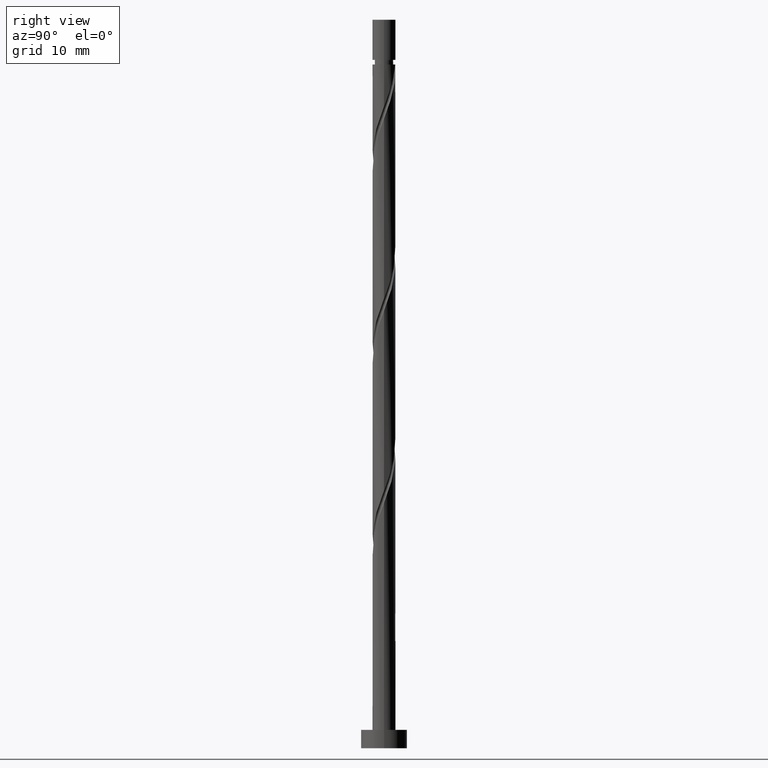
[diagram: clean part render]
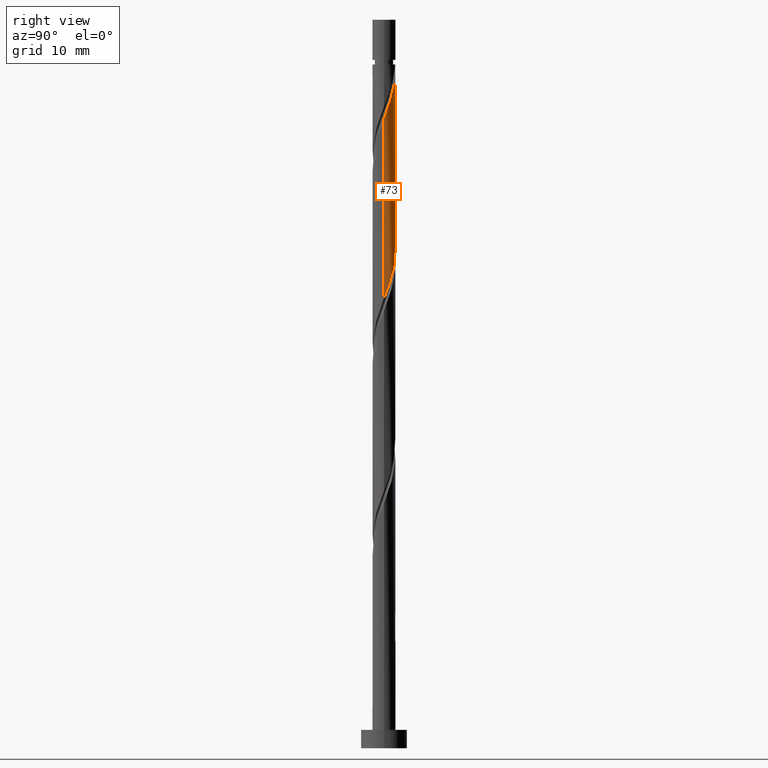
[diagram: same view with one face highlighted and labeled with its STEP entity id]
A machine part, right view. The second image highlights one B-rep face of the part: STEP entity #73.
In plain terms, the highlighted cylindrical surface (edge-blend (fillet) strip) has radius 1.25 mm, axis along (-0, -0, -1).
Its self-contained STEP definition (entity closure, byte-faithful):
#32 = EDGE_CURVE ( 'NONE', #1266, #702, #162, .T. ) ;
#66 = CARTESIAN_POINT ( 'NONE',  ( 0.6989200819604595161, 1.055086260630532902, 71.54417391089489797 ) ) ;
#73 = ADVANCED_FACE ( 'NONE', ( #1175 ), #334, .T. ) ;
#74 = CARTESIAN_POINT ( 'NONE',  ( 1.088177225647685376, 0.6151181395323269685, 69.98167391089491218 ) ) ;
#99 = VERTEX_POINT ( 'NONE', #940 ) ;
#111 = CARTESIAN_POINT ( 'NONE',  ( -0.6989200819604576287, 1.055086260630531791, 55.91917391089489797 ) ) ;
#162 = CIRCLE ( 'NONE', #296, 1.250000000000002887 ) ;
#178 = DIRECTION ( 'NONE',  ( -0.000000000000000000, -0.000000000000000000, -1.000000000000000000 ) ) ;
#180 = CARTESIAN_POINT ( 'NONE',  ( 0.9907520833843873609, 0.7874684803904423713, 70.50250724422824078 ) ) ;
#211 = CARTESIAN_POINT ( 'NONE',  ( -0.2487468592766546027, 1.225000000000002309, 74.14834057756158359 ) ) ;
#222 = EDGE_LOOP ( 'NONE', ( #720, #1242, #1069, #674, #621 ) ) ;
#235 = CARTESIAN_POINT ( 'NONE',  ( -0.5187964976060722710, 1.137255553546199227, 55.39834057756157648 ) ) ;
#240 = VECTOR ( 'NONE', #178, 1000.000000000000000 ) ;
#242 = LINE ( 'NONE', #1088, #1383 ) ;
#243 = CARTESIAN_POINT ( 'NONE',  ( -1.185602367910980393, 0.4427677986742115657, 58.00250724422821236 ) ) ;
#286 =( BOUNDED_CURVE ( )  B_SPLINE_CURVE ( 2, ( #1409, #689, #1174, #1288, #74, #180, #1393, #66, #932, #1157, #562, #553, #1041 ),
 .UNSPECIFIED., .F., .T. ) 
 B_SPLINE_CURVE_WITH_KNOTS ( ( 3, 2, 2, 2, 2, 2, 3 ),
 ( 0.6795322023138555823, 0.6875000000000000000, 0.6999999999999999556, 0.7125000000000000222, 0.7249999999999999778, 0.7375000000000000444, 0.7500000000000000000 ),
 .UNSPECIFIED. ) 
 CURVE ( )  GEOMETRIC_REPRESENTATION_ITEM ( )  RATIONAL_B_SPLINE_CURVE ( ( 0.9039174447099282972, 0.9019565955404582613, 0.9090909090909061741, 0.8978984914501224601, 0.9090909090909061741, 0.8978984914501224601, 0.9090909090909061741, 0.8978984914501224601, 0.9090909090909061741, 0.8978984914501224601, 0.9090909090909061741, 0.8978984914501224601, 0.9090909090909061741 ) ) 
 REPRESENTATION_ITEM ( '' )  );
#296 = AXIS2_PLACEMENT_3D ( 'NONE', #1534, #459, #332 ) ;
#305 = EDGE_CURVE ( 'NONE', #651, #702, #286, .T. ) ;
#332 = DIRECTION ( 'NONE',  ( -1.000000000000000000, 0.000000000000000000, 0.000000000000000000 ) ) ;
#334 = CYLINDRICAL_SURFACE ( 'NONE', #1188, 1.250000000000000000 ) ;
#366 = CARTESIAN_POINT ( 'NONE',  ( -1.224999999999999867, 0.2487468592766547693, 58.52334057756158359 ) ) ;
#385 = EDGE_CURVE ( 'NONE', #1266, #99, #242, .T. ) ;
#446 = DIRECTION ( 'NONE',  ( -0.000000000000000000, -0.000000000000000000, -1.000000000000000000 ) ) ;
#459 = DIRECTION ( 'NONE',  ( -0.000000000000000000, -0.000000000000000000, -1.000000000000000000 ) ) ;
#494 = CARTESIAN_POINT ( 'NONE',  ( 0.9212773705104870814, 0.8448360826724214956, 51.23167391089490508 ) ) ;
#553 = CARTESIAN_POINT ( 'NONE',  ( -0.05472591987909729977, 1.264397632089020895, 73.62750724422825499 ) ) ;
#562 = CARTESIAN_POINT ( 'NONE',  ( 0.1419734966862952752, 1.241911239275444778, 73.10667391089489797 ) ) ;
#583 = CARTESIAN_POINT ( 'NONE',  ( 1.241911239275442780, 0.1419734966862943037, 49.14834057756157648 ) ) ;
#614 = CARTESIAN_POINT ( 'NONE',  ( 0.4427677986742117877, 1.185602367910980393, 52.79417391089488376 ) ) ;
#621 = ORIENTED_EDGE ( 'NONE', *, *, #32, .T. ) ;
#651 = VERTEX_POINT ( 'NONE', #1545 ) ;
#674 = ORIENTED_EDGE ( 'NONE', *, *, #385, .F. ) ;
#689 = CARTESIAN_POINT ( 'NONE',  ( 1.250000000000000444, 0.1256297269074068135, 68.60950937816583917 ) ) ;
#702 = VERTEX_POINT ( 'NONE', #211 ) ;
#703 = CARTESIAN_POINT ( 'NONE',  ( -0.1419734966862945535, 1.241911239275442558, 54.35667391089491929 ) ) ;
#713 = CARTESIAN_POINT ( 'NONE',  ( 1.137255553546199449, 0.5187964976060720490, 50.19000724422824788 ) ) ;
#720 = ORIENTED_EDGE ( 'NONE', *, *, #305, .F. ) ;
#729 = CARTESIAN_POINT ( 'NONE',  ( -0.3386729132516866914, 1.219424846461866219, 54.87750724422821946 ) ) ;
#740 = CARTESIAN_POINT ( 'NONE',  ( 0.05472591987909775774, 1.264397632089018675, 53.83584057756156227 ) ) ;
#834 = VERTEX_POINT ( 'NONE', #1575 ) ;
#850 = CARTESIAN_POINT ( 'NONE',  ( -1.249999999999999112, 0.1256297269074042322, 58.85383844362399230 ) ) ;
#856 = CARTESIAN_POINT ( 'NONE',  ( 0.6151181395323268575, 1.088177225647682933, 52.27334057756156938 ) ) ;
#864 = CARTESIAN_POINT ( 'NONE',  ( -1.250000000000000222, 5.547448029786229546E-16, 59.18814301903181985 ) ) ;
#891 =( BOUNDED_CURVE ( )  B_SPLINE_CURVE ( 2, ( #864, #850, #366, #243, #1079, #1098, #1325, #111, #235, #729, #703, #740, #955, #614, #856, #1570, #494, #975, #713, #1452, #583, #1064, #1541 ),
 .UNSPECIFIED., .F., .T. ) 
 B_SPLINE_CURVE_WITH_KNOTS ( ( 3, 2, 2, 2, 2, 2, 2, 2, 2, 2, 2, 3 ),
 ( 0.4295322023138553602, 0.4375000000000000000, 0.4500000000000000111, 0.4625000000000000222, 0.4749999999999999778, 0.4874999999999999889, 0.5000000000000000000, 0.5124999999999999556, 0.5250000000000000222, 0.5374999999999999778, 0.5500000000000000444, 0.5545322023138552492 ),
 .UNSPECIFIED. ) 
 CURVE ( )  GEOMETRIC_REPRESENTATION_ITEM ( )  RATIONAL_B_SPLINE_CURVE ( ( 0.9039174447099216358, 0.9019565955404511559, 0.9090909090908991796, 0.8978984914501155767, 0.9090909090908991796, 0.8978984914501155767, 0.9090909090908991796, 0.8978984914501155767, 0.9090909090908991796, 0.8978984914501155767, 0.9090909090908991796, 0.8978984914501155767, 0.9090909090908991796, 0.8978984914501155767, 0.9090909090908991796, 0.8978984914501155767, 0.9090909090908991796, 0.8978984914501155767, 0.9090909090908991796, 0.8978984914501155767, 0.9090909090908991796, 0.9050328050005637115, 0.9039174447099216358 ) ) 
 REPRESENTATION_ITEM ( '' )  );
#932 = CARTESIAN_POINT ( 'NONE',  ( 0.5187964976060736033, 1.137255553546200559, 72.06500724422822657 ) ) ;
#940 = CARTESIAN_POINT ( 'NONE',  ( -1.250000000000000000, 5.547448029786229546E-16, 59.18814301903181985 ) ) ;
#945 = EDGE_CURVE ( 'NONE', #651, #834, #1510, .T. ) ;
#955 = CARTESIAN_POINT ( 'NONE',  ( 0.2487468592766550191, 1.224999999999999867, 53.31500724422824788 ) ) ;
#975 = CARTESIAN_POINT ( 'NONE',  ( 1.055086260630531791, 0.6989200819604574066, 50.71084057756156938 ) ) ;
#1041 = CARTESIAN_POINT ( 'NONE',  ( -0.2487468592766546027, 1.225000000000002309, 74.14834057756161201 ) ) ;
#1042 = DIRECTION ( 'NONE',  ( -1.000000000000000000, 0.000000000000000000, 0.000000000000000000 ) ) ;
#1064 = CARTESIAN_POINT ( 'NONE',  ( 1.249999999999999556, 0.07121717180804042202, 48.96098744157244909 ) ) ;
#1069 = ORIENTED_EDGE ( 'NONE', *, *, #1256, .F. ) ;
#1079 = CARTESIAN_POINT ( 'NONE',  ( -1.088177225647682933, 0.6151181395323265244, 57.48167391089491929 ) ) ;
#1088 = CARTESIAN_POINT ( 'NONE',  ( -1.250000000000000000, 0.000000000000000000, 79.00000000000000000 ) ) ;
#1098 = CARTESIAN_POINT ( 'NONE',  ( -0.9907520833843852515, 0.7874684803904412611, 56.96084057756155516 ) ) ;
#1157 = CARTESIAN_POINT ( 'NONE',  ( 0.3386729132516877461, 1.219424846461868217, 72.58584057756156938 ) ) ;
#1174 = CARTESIAN_POINT ( 'NONE',  ( 1.225000000000001421, 0.2487468592766546582, 68.94000724422822657 ) ) ;
#1175 = FACE_OUTER_BOUND ( 'NONE', #222, .T. ) ;
#1188 = AXIS2_PLACEMENT_3D ( 'NONE', #1289, #446, #1042 ) ;
#1195 = CARTESIAN_POINT ( 'NONE',  ( -1.250000000000002887, 0.000000000000000000, 74.14834057756156938 ) ) ;
#1242 = ORIENTED_EDGE ( 'NONE', *, *, #945, .T. ) ;
#1256 = EDGE_CURVE ( 'NONE', #99, #834, #891, .T. ) ;
#1266 = VERTEX_POINT ( 'NONE', #1195 ) ;
#1273 = CARTESIAN_POINT ( 'NONE',  ( 1.250000000000000000, 1.530808498934191571E-16, 79.00000000000000000 ) ) ;
#1288 = CARTESIAN_POINT ( 'NONE',  ( 1.185602367910982613, 0.4427677986742118987, 69.46084057756158359 ) ) ;
#1289 = CARTESIAN_POINT ( 'NONE',  ( 0.000000000000000000, 0.000000000000000000, 79.00000000000000000 ) ) ;
#1325 = CARTESIAN_POINT ( 'NONE',  ( -0.8448360826724217176, 0.9212773705104867483, 56.44000724422825499 ) ) ;
#1383 = VECTOR ( 'NONE', #1564, 1000.000000000000000 ) ;
#1393 = CARTESIAN_POINT ( 'NONE',  ( 0.8448360826724238271, 0.9212773705104877475, 71.02334057756158359 ) ) ;
#1409 = CARTESIAN_POINT ( 'NONE',  ( 1.250000000000001998, 1.499310278320591245E-17, 68.27520480275801162 ) ) ;
#1452 = CARTESIAN_POINT ( 'NONE',  ( 1.219424846461866663, 0.3386729132516865803, 49.66917391089490508 ) ) ;
#1510 = LINE ( 'NONE', #1273, #240 ) ;
#1534 = CARTESIAN_POINT ( 'NONE',  ( 0.000000000000000000, 0.000000000000000000, 74.14834057756156938 ) ) ;
#1541 = CARTESIAN_POINT ( 'NONE',  ( 1.249999999999999334, -1.334386147705336430E-15, 48.77147635236516976 ) ) ;
#1545 = CARTESIAN_POINT ( 'NONE',  ( 1.250000000000001998, 1.499310278320591245E-17, 68.27520480275801162 ) ) ;
#1564 = DIRECTION ( 'NONE',  ( -0.000000000000000000, -0.000000000000000000, -1.000000000000000000 ) ) ;
#1570 = CARTESIAN_POINT ( 'NONE',  ( 0.7874684803904414832, 0.9907520833843852515, 51.75250724422823367 ) ) ;
#1575 = CARTESIAN_POINT ( 'NONE',  ( 1.249999999999999334, -1.334386147705336232E-15, 48.77147635236516976 ) ) ;